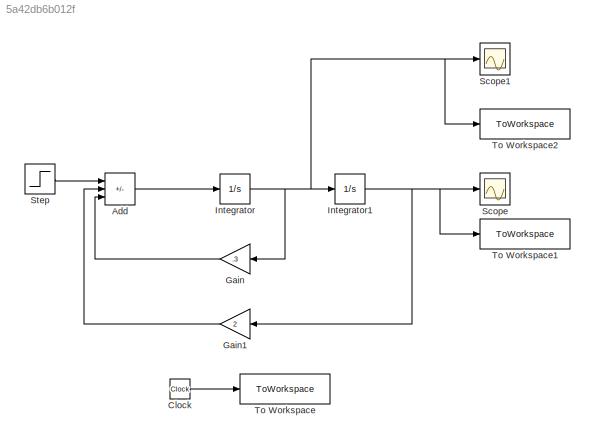
MODEL slx_5a42db6b012f
KIND model
CONFIG AbsTol = auto
CONFIG EnableMultiTasking = off
CONFIG FixedStep = auto
CONFIG MaxStep = auto
CONFIG MinStep = auto
CONFIG RelTol = 1e-3
CONFIG SampleTimeConstraint = Unconstrained
CONFIG SolverName = VariableStepAuto
CONFIG StartTime = 0.0
CONFIG StopTime = 10.0
BLOCK [Sum] Add
  IconShape = rectangular
  Inputs = +--
BLOCK [Clock] Clock
BLOCK [Gain] Gain
  Gain = .3
  NameLocation = top
BLOCK [Gain] Gain1
  Gain = 2
  NameLocation = top
BLOCK [Integrator] Integrator
BLOCK [Integrator] Integrator1
  InitialCondition = 5
BLOCK [Scope] Scope
  Floating = off
  NumInputPorts = 1
  ScopeSpecificationString = Simulink.scopes.TimeScopeBlockCfg('CurrentConfiguration', extmgr.ConfigurationSet(extmgr.Configuration('Core','General UI',true),extmgr.Configuration('Core','Source UI',true),extmgr.Configuration('Sources','WiredSimulink',true),extmgr.Configuration('Visuals','Time Domain',true,'SerializedDisplays',{struct('MinYLimReal','-4.64366','MaxYLimReal','6.07152','YLabelReal','','MinYLimMag','0.00000','MaxY...<+1420ch>
BLOCK [Scope] Scope1
  Floating = off
  NumInputPorts = 1
  ScopeSpecificationString = Simulink.scopes.TimeScopeBlockCfg('CurrentConfiguration', extmgr.ConfigurationSet(extmgr.Configuration('Core','General UI',true),extmgr.Configuration('Core','Source UI',true),extmgr.Configuration('Sources','WiredSimulink',true,'DataLoggingVariableName','ScopeData1'),extmgr.Configuration('Visuals','Time Domain',true,'SerializedDisplays',{struct('MinYLimReal','-7.33037','MaxYLimReal','5.59377','YLab...<+1488ch>
BLOCK [Step] Step
  After = 0
  SampleTime = 0
BLOCK [ToWorkspace] To Workspace
  FixptAsFi = on
  MaxDataPoints = inf
  SampleTime = 0.1
  VariableName = t
BLOCK [ToWorkspace] To Workspace1
  FixptAsFi = on
  MaxDataPoints = inf
  SampleTime = 0.1
  VariableName = x
BLOCK [ToWorkspace] To Workspace2
  FixptAsFi = on
  MaxDataPoints = inf
  SampleTime = 0.1
  VariableName = dx
LINE Add:1 -> Integrator:1
LINE Clock:1 -> To Workspace:1
LINE Gain1:1 -> Add:2
LINE Gain:1 -> Add:3
NET Integrator1:1 -> Gain1:1, Scope:1, To Workspace1:1
NET Integrator:1 -> Gain:1, Integrator1:1, Scope1:1, To Workspace2:1
LINE Step:1 -> Add:1
note: NET lines group one-source signal fan-out (src -> all destinations, sorted); 1:1 wires keep LINE
